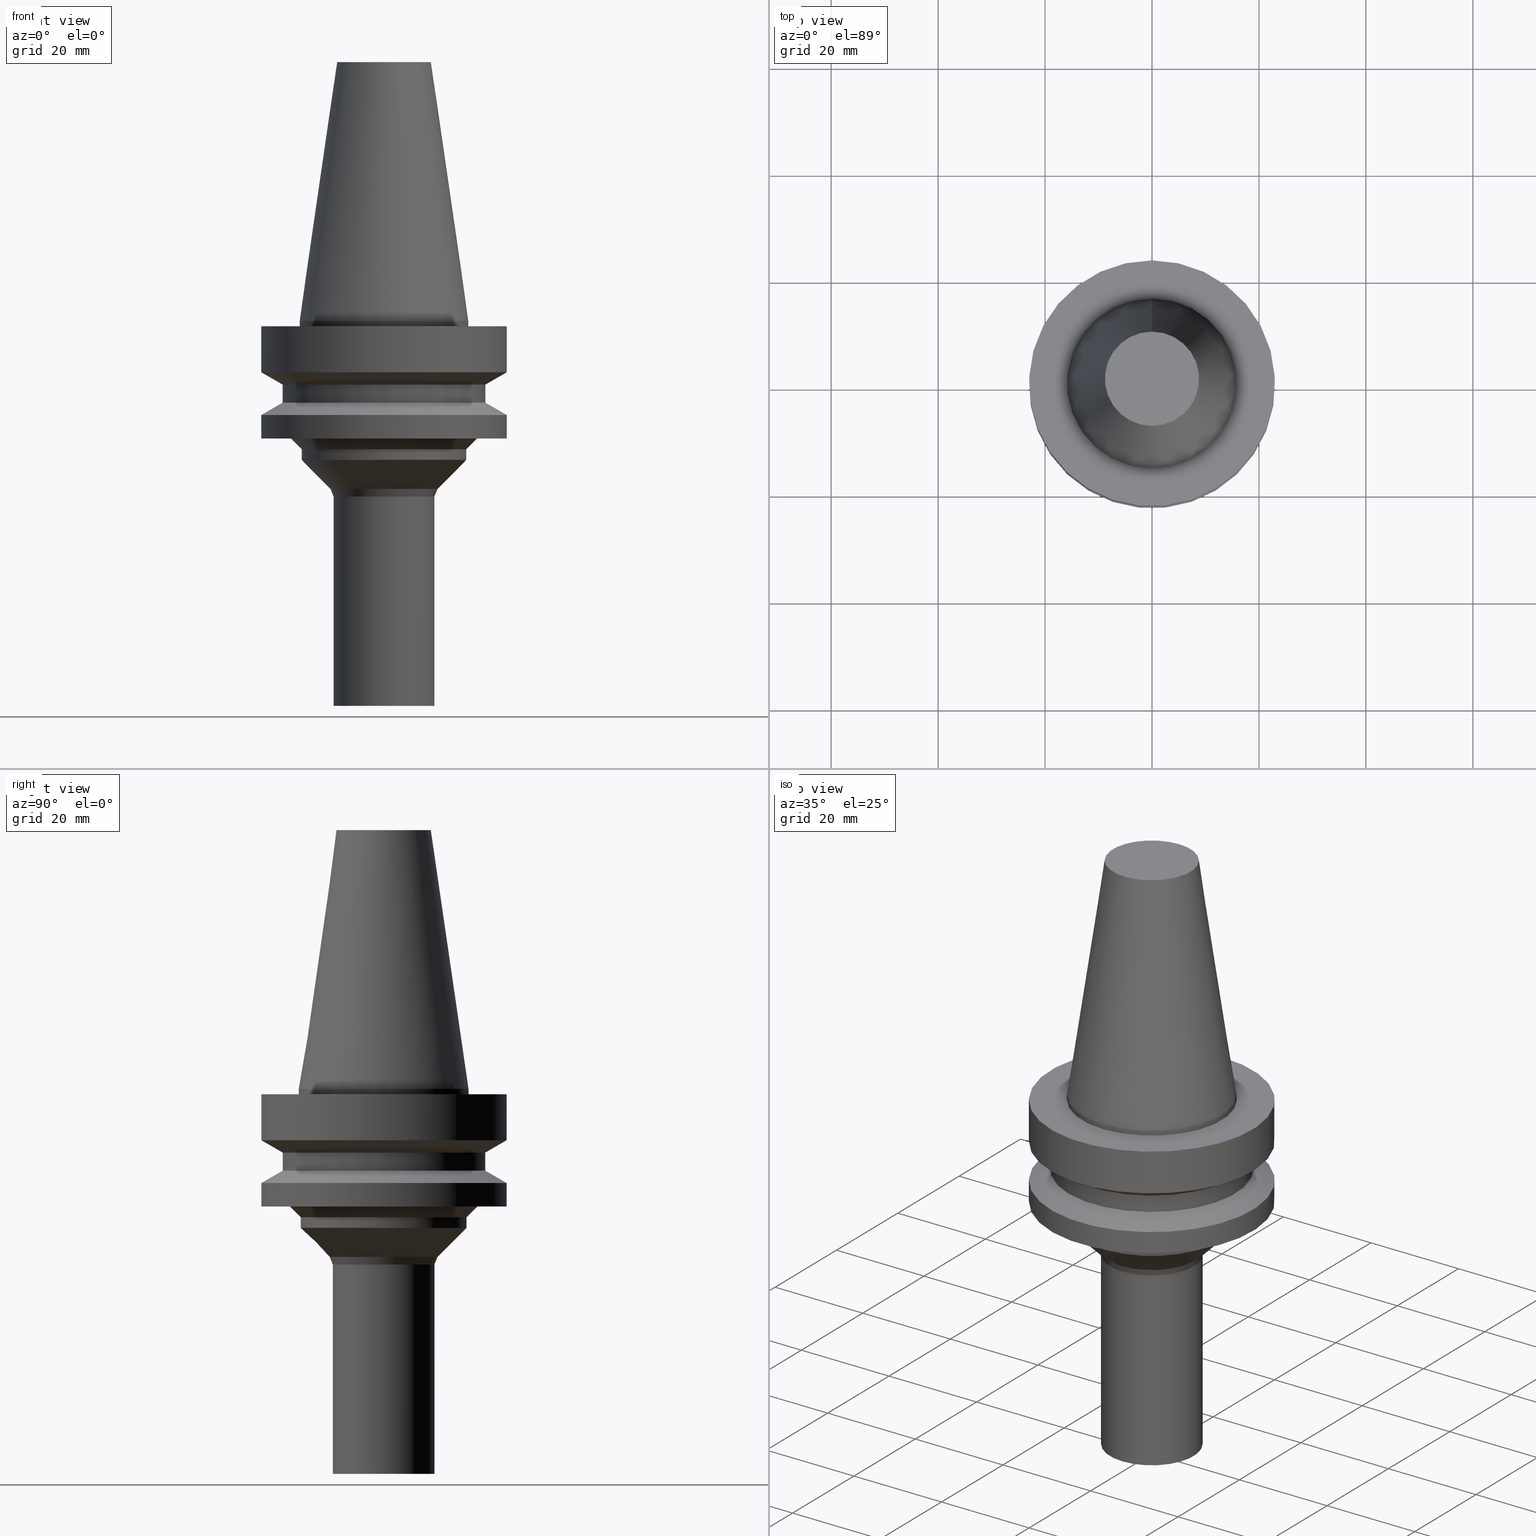
[diagram: canonical four-view strip — front | top / right | iso, engineering-drawing reading convention]
A machine part, canonical four-view strip (front | top / right | iso — engineering-drawing reading convention). The complete STEP part file that produces these views, byte-faithful:
ISO-10303-21;
HEADER;
FILE_DESCRIPTION((''),'1');
FILE_NAME('//Big_tech03/bigt/Translate/21_\X2\8F2A90ED7DDA\X0\-DXF/21_CK\X2\30DC30FC30EA30F330B030B730B930C630E0\X0\/01_CK\X2\30D930FC30B930DB30EB30C0\X0\ CK/BBT/BBT30/BBT30-CK1-105.stp','2012-05-17T01:13:19',(''),(''),'Spatial Interop R18','Kubotek KeyCreator V8.5.1 (14335)',' ');
FILE_SCHEMA(('CONFIG_CONTROL_DESIGN'));
ENDSEC;
DATA;
#1=DESIGN_CONTEXT('',#27,'design');
#2=APPLICATION_PROTOCOL_DEFINITION('INTERNATIONAL STANDARD','config_control_design',1994,#27);
#3=PRODUCT_CATEGORY_RELATIONSHIP('NONE','NONE',#28,#29);
#4=DATE_AND_TIME(#30,#31);
#5=DATE_TIME_ROLE('creation_date');
#6=DATE_TIME_ROLE('classification_date');
#7=PERSON_AND_ORGANIZATION_ROLE('creator');
#8=PERSON_AND_ORGANIZATION_ROLE('design_supplier');
#9=PERSON_AND_ORGANIZATION_ROLE('classification_officer');
#10=PERSON_AND_ORGANIZATION_ROLE('design_owner');
#11=APPROVAL_PERSON_ORGANIZATION(#32,#33,#34);
#12=APPROVAL_DATE_TIME(#4,#33);
#13=CC_DESIGN_APPROVAL(#33,(#35,#36,#37));
#14=CC_DESIGN_DATE_AND_TIME_ASSIGNMENT(#4,#5,(#37));
#15=CC_DESIGN_DATE_AND_TIME_ASSIGNMENT(#4,#6,(#35));
#16=CC_DESIGN_PERSON_AND_ORGANIZATION_ASSIGNMENT(#32,#10,(#38));
#17=CC_DESIGN_PERSON_AND_ORGANIZATION_ASSIGNMENT(#32,#7,(#37));
#18=CC_DESIGN_PERSON_AND_ORGANIZATION_ASSIGNMENT(#32,#7,(#36));
#19=CC_DESIGN_PERSON_AND_ORGANIZATION_ASSIGNMENT(#32,#8,(#36));
#20=CC_DESIGN_SECURITY_CLASSIFICATION(#35,(#36));
#21=CC_DESIGN_PERSON_AND_ORGANIZATION_ASSIGNMENT(#32,#9,(#35));
#22=SHAPE_DEFINITION_REPRESENTATION(#39,#40);
#23= (GEOMETRIC_REPRESENTATION_CONTEXT(3)GLOBAL_UNCERTAINTY_ASSIGNED_CONTEXT((#43))GLOBAL_UNIT_ASSIGNED_CONTEXT((#45,#46,#47))REPRESENTATION_CONTEXT('NONE','WORKSPACE'));
#27=APPLICATION_CONTEXT('CONFIGURATION CONTROLLED 3D DESIGNS OF MECHANICAL PARTS AND ASSEMBLIES');
#28=PRODUCT_CATEGORY('part','NONE');
#29=PRODUCT_RELATED_PRODUCT_CATEGORY('detail',' ',(#38));
#30=CALENDAR_DATE(2012,17,4);
#31=LOCAL_TIME(10,13,19.0,#49);
#32=PERSON_AND_ORGANIZATION(#50,#51);
#33=APPROVAL(#52,'SOLID MODEL');
#34=APPROVAL_ROLE('APPROVED');
#35=SECURITY_CLASSIFICATION('','',#53);
#36=PRODUCT_DEFINITION_FORMATION_WITH_SPECIFIED_SOURCE(' ','NONE',#38,.NOT_KNOWN.);
#37=PRODUCT_DEFINITION('NONE','NONE',#36,#1);
#38=PRODUCT('1','1','PART-1-DESC',(#54));
#39=PRODUCT_DEFINITION_SHAPE('NONE','NONE',#37);
#40=ADVANCED_BREP_SHAPE_REPRESENTATION('1',(#55,#56),#23);
#43=UNCERTAINTY_MEASURE_WITH_UNIT(LENGTH_MEASURE(1.0E-006),#45,'','');
#45= (CONVERSION_BASED_UNIT('MILLIMETRE',#59)LENGTH_UNIT()NAMED_UNIT(#62));
#46= (NAMED_UNIT(#64)PLANE_ANGLE_UNIT()SI_UNIT($,.RADIAN.));
#47= (NAMED_UNIT(#64)SOLID_ANGLE_UNIT()SI_UNIT($,.STERADIAN.));
#49=COORDINATED_UNIVERSAL_TIME_OFFSET(9,0,.AHEAD.);
#50=PERSON('','UNSPECIFIED',$,$,$,$);
#51=ORGANIZATION('UNSPECIFIED','UNSPECIFIED','UNSPECIFIED');
#52=APPROVAL_STATUS('approved');
#53=SECURITY_CLASSIFICATION_LEVEL('unclassified');
#54=MECHANICAL_CONTEXT('',#27,'mechanical');
#55=MANIFOLD_SOLID_BREP('1',#70);
#56=AXIS2_PLACEMENT_3D('',#71,#72,#73);
#59=LENGTH_MEASURE_WITH_UNIT(LENGTH_MEASURE(1.0),#74);
#62=DIMENSIONAL_EXPONENTS(1.0,0.0,0.0,0.0,0.0,0.0,0.0);
#64=DIMENSIONAL_EXPONENTS(0.0,0.0,0.0,0.0,0.0,0.0,0.0);
#70=CLOSED_SHELL('',(#75,#76,#77,#78,#79,#80,#81,#82,#83,#84,#85,#86,#87,#88,#89,#90));
#71=CARTESIAN_POINT('',(0.0,0.0,0.0));
#72=DIRECTION('',(0.0,0.0,1.0));
#73=DIRECTION('',(1.0,0.0,0.0));
#74= (NAMED_UNIT(#62)LENGTH_UNIT()SI_UNIT(.MILLI.,.METRE.));
#75=ADVANCED_FACE('',(#92),#93,.T.);
#76=ADVANCED_FACE('',(#94),#95,.T.);
#77=ADVANCED_FACE('',(#96,#97),#98,.T.);
#78=ADVANCED_FACE('',(#99,#100),#101,.T.);
#79=ADVANCED_FACE('',(#102,#103),#104,.T.);
#80=ADVANCED_FACE('',(#105,#106),#107,.T.);
#81=ADVANCED_FACE('',(#108,#109),#110,.T.);
#82=ADVANCED_FACE('',(#111,#112),#113,.T.);
#83=ADVANCED_FACE('',(#114,#115),#116,.T.);
#84=ADVANCED_FACE('',(#117,#118),#119,.T.);
#85=ADVANCED_FACE('',(#120,#121),#122,.T.);
#86=ADVANCED_FACE('',(#123,#124),#125,.T.);
#87=ADVANCED_FACE('',(#126,#127),#128,.T.);
#88=ADVANCED_FACE('',(#129,#130),#131,.T.);
#89=ADVANCED_FACE('',(#132,#133),#134,.T.);
#90=ADVANCED_FACE('',(#135,#136),#137,.T.);
#92=FACE_OUTER_BOUND('',#138,.T.);
#93=PLANE('',#139);
#94=FACE_OUTER_BOUND('',#140,.T.);
#95=PLANE('',#141);
#96=FACE_BOUND('',#142,.T.);
#97=FACE_BOUND('',#143,.T.);
#98=CYLINDRICAL_SURFACE('',#144,9.50000000000001);
#99=FACE_BOUND('',#145,.T.);
#100=FACE_BOUND('',#146,.T.);
#101=CONICAL_SURFACE('',#147,9.79268323946581,0.392550581823694);
#102=FACE_BOUND('',#148,.T.);
#103=FACE_BOUND('',#149,.T.);
#104=CONICAL_SURFACE('',#150,12.7926832394658,0.785398163397447);
#105=FACE_BOUND('',#151,.T.);
#106=FACE_BOUND('',#152,.T.);
#107=CYLINDRICAL_SURFACE('',#153,15.5);
#108=FACE_BOUND('',#154,.T.);
#109=FACE_BOUND('',#155,.T.);
#110=CONICAL_SURFACE('',#156,16.5,0.785398163397448);
#111=FACE_OUTER_BOUND('',#157,.T.);
#112=FACE_BOUND('',#158,.T.);
#113=PLANE('',#159);
#114=FACE_BOUND('',#160,.T.);
#115=FACE_BOUND('',#161,.T.);
#116=CYLINDRICAL_SURFACE('',#162,23.0);
#117=FACE_BOUND('',#163,.T.);
#118=FACE_BOUND('',#164,.T.);
#119=CONICAL_SURFACE('',#165,21.0,1.0471975511966);
#120=FACE_BOUND('',#166,.T.);
#121=FACE_BOUND('',#167,.T.);
#122=CYLINDRICAL_SURFACE('',#168,19.0);
#123=FACE_BOUND('',#169,.T.);
#124=FACE_BOUND('',#170,.T.);
#125=CONICAL_SURFACE('',#171,21.0,1.0471975511966);
#126=FACE_BOUND('',#172,.T.);
#127=FACE_BOUND('',#173,.T.);
#128=CYLINDRICAL_SURFACE('',#174,23.0);
#129=FACE_BOUND('',#175,.T.);
#130=FACE_OUTER_BOUND('',#176,.T.);
#131=PLANE('',#177);
#132=FACE_BOUND('',#178,.T.);
#133=FACE_BOUND('',#179,.T.);
#134=CYLINDRICAL_SURFACE('',#180,15.8750000000006);
#135=FACE_BOUND('',#181,.T.);
#136=FACE_BOUND('',#182,.T.);
#137=CONICAL_SURFACE('',#183,12.3457500000001,0.144815870053811);
#138=EDGE_LOOP('',(#184));
#139=AXIS2_PLACEMENT_3D('',#185,#186,#187);
#140=EDGE_LOOP('',(#188));
#141=AXIS2_PLACEMENT_3D('',#189,#190,#191);
#142=EDGE_LOOP('',(#192));
#143=EDGE_LOOP('',(#193));
#144=AXIS2_PLACEMENT_3D('',#194,#195,#196);
#145=EDGE_LOOP('',(#197));
#146=EDGE_LOOP('',(#198));
#147=AXIS2_PLACEMENT_3D('',#199,#200,#201);
#148=EDGE_LOOP('',(#202));
#149=EDGE_LOOP('',(#203));
#150=AXIS2_PLACEMENT_3D('',#204,#205,#206);
#151=EDGE_LOOP('',(#207));
#152=EDGE_LOOP('',(#208));
#153=AXIS2_PLACEMENT_3D('',#209,#210,#211);
#154=EDGE_LOOP('',(#212));
#155=EDGE_LOOP('',(#213));
#156=AXIS2_PLACEMENT_3D('',#214,#215,#216);
#157=EDGE_LOOP('',(#217));
#158=EDGE_LOOP('',(#218));
#159=AXIS2_PLACEMENT_3D('',#219,#220,#221);
#160=EDGE_LOOP('',(#222));
#161=EDGE_LOOP('',(#223));
#162=AXIS2_PLACEMENT_3D('',#224,#225,#226);
#163=EDGE_LOOP('',(#227));
#164=EDGE_LOOP('',(#228));
#165=AXIS2_PLACEMENT_3D('',#229,#230,#231);
#166=EDGE_LOOP('',(#232));
#167=EDGE_LOOP('',(#233));
#168=AXIS2_PLACEMENT_3D('',#234,#235,#236);
#169=EDGE_LOOP('',(#237));
#170=EDGE_LOOP('',(#238));
#171=AXIS2_PLACEMENT_3D('',#239,#240,#241);
#172=EDGE_LOOP('',(#242));
#173=EDGE_LOOP('',(#243));
#174=AXIS2_PLACEMENT_3D('',#244,#245,#246);
#175=EDGE_LOOP('',(#247));
#176=EDGE_LOOP('',(#248));
#177=AXIS2_PLACEMENT_3D('',#249,#250,#251);
#178=EDGE_LOOP('',(#252));
#179=EDGE_LOOP('',(#253));
#180=AXIS2_PLACEMENT_3D('',#254,#255,#256);
#181=EDGE_LOOP('',(#257));
#182=EDGE_LOOP('',(#258));
#183=AXIS2_PLACEMENT_3D('',#259,#260,#261);
#184=ORIENTED_EDGE('',*,*,#262,.T.);
#185=CARTESIAN_POINT('',(-2.96364525393659E-015,4.40825,48.4));
#186=DIRECTION('',(-6.12323399573677E-017,-1.22464679914735E-016,1.0));
#187=DIRECTION('',(-1.23259516440783E-032,1.0,1.22464679914735E-016));
#188=ORIENTED_EDGE('',*,*,#263,.F.);
#189=CARTESIAN_POINT('',(4.40872847693047E-015,4.75000000000002,-72.0));
#190=DIRECTION('',(6.12323399573677E-017,1.22464679914735E-016,-1.0));
#191=DIRECTION('',(1.23259516440783E-032,-1.0,-1.22464679914735E-016));
#192=ORIENTED_EDGE('',*,*,#264,.F.);
#193=ORIENTED_EDGE('',*,*,#263,.T.);
#194=CARTESIAN_POINT('',(3.20944493963005E-015,6.4188898792601E-015,-52.4142135));
#195=DIRECTION('',(6.12323399573677E-017,1.22464679914735E-016,-1.0));
#196=DIRECTION('',(-1.23259516440783E-032,1.0,1.22464679914735E-016));
#197=ORIENTED_EDGE('',*,*,#265,.F.);
#198=ORIENTED_EDGE('',*,*,#264,.T.);
#199=CARTESIAN_POINT('',(1.9668764608639E-015,3.9337529217278E-015,-32.1215302605342));
#200=DIRECTION('',(-6.12323399573677E-017,-1.22464679914735E-016,1.0));
#201=DIRECTION('',(-1.23259516440783E-032,1.0,1.22464679914735E-016));
#202=ORIENTED_EDGE('',*,*,#266,.F.);
#203=ORIENTED_EDGE('',*,*,#265,.T.);
#204=CARTESIAN_POINT('',(1.75781617914487E-015,3.51563235828973E-015,-28.7073167605341));
#205=DIRECTION('',(-6.12323399573677E-017,-1.22464679914735E-016,1.0));
#206=DIRECTION('',(-1.23259516440783E-032,1.0,1.22464679914735E-016));
#207=ORIENTED_EDGE('',*,*,#267,.F.);
#208=ORIENTED_EDGE('',*,*,#266,.T.);
#209=CARTESIAN_POINT('',(1.53080849893419E-015,3.06161699786838E-015,-25.0));
#210=DIRECTION('',(6.12323399573677E-017,1.22464679914735E-016,-1.0));
#211=DIRECTION('',(-1.23259516440783E-032,1.0,1.22464679914735E-016));
#212=ORIENTED_EDGE('',*,*,#268,.F.);
#213=ORIENTED_EDGE('',*,*,#267,.T.);
#214=CARTESIAN_POINT('',(1.40834381901946E-015,2.81668763803891E-015,-23.0));
#215=DIRECTION('',(-6.12323399573677E-017,-1.22464679914735E-016,1.0));
#216=DIRECTION('',(-1.23259516440783E-032,1.0,1.22464679914735E-016));
#217=ORIENTED_EDGE('',*,*,#269,.F.);
#218=ORIENTED_EDGE('',*,*,#268,.T.);
#219=CARTESIAN_POINT('',(1.34711147906209E-015,20.25,-22.0));
#220=DIRECTION('',(6.12323399573677E-017,1.22464679914735E-016,-1.0));
#221=DIRECTION('',(1.23259516440783E-032,-1.0,-1.22464679914735E-016));
#222=ORIENTED_EDGE('',*,*,#270,.F.);
#223=ORIENTED_EDGE('',*,*,#269,.T.);
#224=CARTESIAN_POINT('',(1.21240033115588E-015,2.42480066231176E-015,-19.8));
#225=DIRECTION('',(6.12323399573677E-017,1.22464679914735E-016,-1.0));
#226=DIRECTION('',(-1.23259516440783E-032,1.0,1.22464679914735E-016));
#227=ORIENTED_EDGE('',*,*,#271,.F.);
#228=ORIENTED_EDGE('',*,*,#270,.T.);
#229=CARTESIAN_POINT('',(1.00698416733468E-015,2.01396833466935E-015,-16.4452994616207));
#230=DIRECTION('',(6.12323399573676E-017,1.22464679914735E-016,-1.0));
#231=DIRECTION('',(-1.23259516440783E-032,1.0,1.22464679914735E-016));
#232=ORIENTED_EDGE('',*,*,#272,.F.);
#233=ORIENTED_EDGE('',*,*,#271,.T.);
#234=CARTESIAN_POINT('',(8.327598234202E-016,1.6655196468404E-015,-13.6));
#235=DIRECTION('',(6.12323399573677E-017,1.22464679914735E-016,-1.0));
#236=DIRECTION('',(-1.23259516440783E-032,1.0,1.22464679914735E-016));
#237=ORIENTED_EDGE('',*,*,#273,.F.);
#238=ORIENTED_EDGE('',*,*,#272,.T.);
#239=CARTESIAN_POINT('',(6.58535479505723E-016,1.31707095901145E-015,-10.7547005383792));
#240=DIRECTION('',(-6.12323399573676E-017,-1.22464679914735E-016,1.0));
#241=DIRECTION('',(-1.23259516440783E-032,1.0,1.22464679914735E-016));
#242=ORIENTED_EDGE('',*,*,#274,.F.);
#243=ORIENTED_EDGE('',*,*,#273,.T.);
#244=CARTESIAN_POINT('',(3.24531401774048E-016,6.49062803548097E-016,-5.3));
#245=DIRECTION('',(6.12323399573677E-017,1.22464679914735E-016,-1.0));
#246=DIRECTION('',(-1.23259516440783E-032,1.0,1.22464679914735E-016));
#247=ORIENTED_EDGE('',*,*,#275,.F.);
#248=ORIENTED_EDGE('',*,*,#274,.T.);
#249=CARTESIAN_POINT('',(6.12323399573674E-017,19.4375000000006,-0.999999999999998));
#250=DIRECTION('',(-6.12323399573677E-017,-1.22464679914735E-016,1.0));
#251=DIRECTION('',(-1.23259516440783E-032,1.0,1.22464679914735E-016));
#252=ORIENTED_EDGE('',*,*,#276,.F.);
#253=ORIENTED_EDGE('',*,*,#275,.T.);
#254=CARTESIAN_POINT('',(3.06161699787104E-017,6.12323399574207E-017,-0.500000000000433));
#255=DIRECTION('',(6.12323399573677E-017,1.22464679914735E-016,-1.0));
#256=DIRECTION('',(-1.23259516440783E-032,1.0,1.22464679914735E-016));
#257=ORIENTED_EDGE('',*,*,#262,.F.);
#258=ORIENTED_EDGE('',*,*,#276,.T.);
#259=CARTESIAN_POINT('',(-1.48182262696827E-015,-2.96364525393654E-015,24.1999999999996));
#260=DIRECTION('',(6.12323399573677E-017,1.22464679914735E-016,-1.0));
#261=DIRECTION('',(-1.23259516440783E-032,1.0,1.22464679914735E-016));
#262=EDGE_CURVE('',#277,#277,#278,.T.);
#263=EDGE_CURVE('',#279,#279,#280,.T.);
#264=EDGE_CURVE('',#281,#281,#282,.T.);
#265=EDGE_CURVE('',#283,#283,#284,.T.);
#266=EDGE_CURVE('',#285,#285,#286,.T.);
#267=EDGE_CURVE('',#287,#287,#288,.T.);
#268=EDGE_CURVE('',#289,#289,#290,.T.);
#269=EDGE_CURVE('',#291,#291,#292,.T.);
#270=EDGE_CURVE('',#293,#293,#294,.T.);
#271=EDGE_CURVE('',#295,#295,#296,.T.);
#272=EDGE_CURVE('',#297,#297,#298,.T.);
#273=EDGE_CURVE('',#299,#299,#300,.T.);
#274=EDGE_CURVE('',#301,#301,#302,.T.);
#275=EDGE_CURVE('',#303,#303,#304,.T.);
#276=EDGE_CURVE('',#305,#305,#306,.T.);
#277=VERTEX_POINT('',#307);
#278=CIRCLE('',#308,8.81650000000002);
#279=VERTEX_POINT('',#309);
#280=CIRCLE('',#310,9.50000000000001);
#281=VERTEX_POINT('',#311);
#282=CIRCLE('',#312,9.50000000000001);
#283=VERTEX_POINT('',#313);
#284=CIRCLE('',#314,10.0853664789316);
#285=VERTEX_POINT('',#315);
#286=CIRCLE('',#316,15.5);
#287=VERTEX_POINT('',#317);
#288=CIRCLE('',#318,15.5);
#289=VERTEX_POINT('',#319);
#290=CIRCLE('',#320,17.5);
#291=VERTEX_POINT('',#321);
#292=CIRCLE('',#322,23.0);
#293=VERTEX_POINT('',#323);
#294=CIRCLE('',#324,23.0);
#295=VERTEX_POINT('',#325);
#296=CIRCLE('',#326,19.0);
#297=VERTEX_POINT('',#327);
#298=CIRCLE('',#328,19.0);
#299=VERTEX_POINT('',#329);
#300=CIRCLE('',#330,23.0);
#301=VERTEX_POINT('',#331);
#302=CIRCLE('',#332,23.0);
#303=VERTEX_POINT('',#333);
#304=CIRCLE('',#334,15.8750000000011);
#305=VERTEX_POINT('',#335);
#306=CIRCLE('',#336,15.8750000000001);
#307=CARTESIAN_POINT('',(-2.96364525393659E-015,8.81650000000001,48.4));
#308=AXIS2_PLACEMENT_3D('',#337,#338,#339);
#309=CARTESIAN_POINT('',(4.40872847693047E-015,9.50000000000002,-72.0));
#310=AXIS2_PLACEMENT_3D('',#340,#341,#342);
#311=CARTESIAN_POINT('',(2.01016140232963E-015,9.50000000000002,-32.828427));
#312=AXIS2_PLACEMENT_3D('',#343,#344,#345);
#313=CARTESIAN_POINT('',(1.92359151939818E-015,10.0853664789316,-31.4146335210684));
#314=AXIS2_PLACEMENT_3D('',#346,#347,#348);
#315=CARTESIAN_POINT('',(1.59204083889156E-015,15.5,-25.9999999999999));
#316=AXIS2_PLACEMENT_3D('',#349,#350,#351);
#317=CARTESIAN_POINT('',(1.46957615897682E-015,15.5,-24.0));
#318=AXIS2_PLACEMENT_3D('',#352,#353,#354);
#319=CARTESIAN_POINT('',(1.34711147906209E-015,17.5,-22.0));
#320=AXIS2_PLACEMENT_3D('',#355,#356,#357);
#321=CARTESIAN_POINT('',(1.34711147906209E-015,23.0,-22.0));
#322=AXIS2_PLACEMENT_3D('',#358,#359,#360);
#323=CARTESIAN_POINT('',(1.07768918324967E-015,23.0,-17.6));
#324=AXIS2_PLACEMENT_3D('',#361,#362,#363);
#325=CARTESIAN_POINT('',(9.36279151419683E-016,19.0,-15.2905989232415));
#326=AXIS2_PLACEMENT_3D('',#364,#365,#366);
#327=CARTESIAN_POINT('',(7.29240495420716E-016,19.0,-11.9094010767585));
#328=AXIS2_PLACEMENT_3D('',#367,#368,#369);
#329=CARTESIAN_POINT('',(5.87830463590729E-016,23.0,-9.6));
#330=AXIS2_PLACEMENT_3D('',#370,#371,#372);
#331=CARTESIAN_POINT('',(6.12323399573674E-017,23.0,-0.999999999999997));
#332=AXIS2_PLACEMENT_3D('',#373,#374,#375);
#333=CARTESIAN_POINT('',(6.12323399573675E-017,15.8750000000011,-0.999999999999998));
#334=AXIS2_PLACEMENT_3D('',#376,#377,#378);
#335=CARTESIAN_POINT('',(5.29417501326539E-029,15.8750000000001,-8.65855873206354E-013));
#336=AXIS2_PLACEMENT_3D('',#379,#380,#381);
#337=CARTESIAN_POINT('',(-2.96364525393659E-015,-5.92729050787319E-015,48.4));
#338=DIRECTION('',(-6.12323399573677E-017,-1.22464679914735E-016,1.0));
#339=DIRECTION('',(-1.23259516440783E-032,1.0,1.22464679914735E-016));
#340=CARTESIAN_POINT('',(4.40872847693047E-015,8.81745695386094E-015,-72.0));
#341=DIRECTION('',(-6.12323399573677E-017,-1.22464679914735E-016,1.0));
#342=DIRECTION('',(-1.23259516440783E-032,1.0,1.22464679914735E-016));
#343=CARTESIAN_POINT('',(2.01016140232963E-015,4.02032280465925E-015,-32.828427));
#344=DIRECTION('',(-6.12323399573677E-017,-1.22464679914735E-016,1.0));
#345=DIRECTION('',(-1.23259516440783E-032,1.0,1.22464679914735E-016));
#346=CARTESIAN_POINT('',(1.92359151939818E-015,3.84718303879635E-015,-31.4146335210684));
#347=DIRECTION('',(-6.12323399573677E-017,-1.22464679914735E-016,1.0));
#348=DIRECTION('',(-1.23259516440783E-032,1.0,1.22464679914735E-016));
#349=CARTESIAN_POINT('',(1.59204083889156E-015,3.18408167778311E-015,-25.9999999999999));
#350=DIRECTION('',(-6.12323399573677E-017,-1.22464679914735E-016,1.0));
#351=DIRECTION('',(-1.23259516440783E-032,1.0,1.22464679914735E-016));
#352=CARTESIAN_POINT('',(1.46957615897682E-015,2.93915231795365E-015,-24.0));
#353=DIRECTION('',(-6.12323399573677E-017,-1.22464679914735E-016,1.0));
#354=DIRECTION('',(-1.23259516440783E-032,1.0,1.22464679914735E-016));
#355=CARTESIAN_POINT('',(1.34711147906209E-015,2.69422295812418E-015,-22.0));
#356=DIRECTION('',(-6.12323399573677E-017,-1.22464679914735E-016,1.0));
#357=DIRECTION('',(-1.23259516440783E-032,1.0,1.22464679914735E-016));
#358=CARTESIAN_POINT('',(1.34711147906209E-015,2.69422295812418E-015,-22.0));
#359=DIRECTION('',(-6.12323399573677E-017,-1.22464679914735E-016,1.0));
#360=DIRECTION('',(-1.23259516440783E-032,1.0,1.22464679914735E-016));
#361=CARTESIAN_POINT('',(1.07768918324967E-015,2.15537836649934E-015,-17.6));
#362=DIRECTION('',(-6.12323399573677E-017,-1.22464679914735E-016,1.0));
#363=DIRECTION('',(-1.23259516440783E-032,1.0,1.22464679914735E-016));
#364=CARTESIAN_POINT('',(9.36279151419684E-016,1.87255830283937E-015,-15.2905989232415));
#365=DIRECTION('',(-6.12323399573677E-017,-1.22464679914735E-016,1.0));
#366=DIRECTION('',(-1.23259516440783E-032,1.0,1.22464679914735E-016));
#367=CARTESIAN_POINT('',(7.29240495420716E-016,1.45848099084143E-015,-11.9094010767585));
#368=DIRECTION('',(-6.12323399573677E-017,-1.22464679914735E-016,1.0));
#369=DIRECTION('',(-1.23259516440783E-032,1.0,1.22464679914735E-016));
#370=CARTESIAN_POINT('',(5.8783046359073E-016,1.17566092718146E-015,-9.6));
#371=DIRECTION('',(-6.12323399573677E-017,-1.22464679914735E-016,1.0));
#372=DIRECTION('',(-1.23259516440783E-032,1.0,1.22464679914735E-016));
#373=CARTESIAN_POINT('',(6.12323399573677E-017,1.22464679914735E-016,-1.0));
#374=DIRECTION('',(-6.12323399573677E-017,-1.22464679914735E-016,1.0));
#375=DIRECTION('',(-1.23259516440783E-032,1.0,1.22464679914735E-016));
#376=CARTESIAN_POINT('',(6.12323399573677E-017,1.22464679914735E-016,-1.0));
#377=DIRECTION('',(-6.12323399573677E-017,-1.22464679914735E-016,1.0));
#378=DIRECTION('',(-1.23259516440783E-032,1.0,1.22464679914735E-016));
#379=CARTESIAN_POINT('',(5.30799971073666E-029,1.06159994214733E-028,-8.66862137627322E-013));
#380=DIRECTION('',(-6.12323399573676E-017,-1.22464679914735E-016,1.0));
#381=DIRECTION('',(-1.23259516440783E-032,1.0,1.22464679914735E-016));
ENDSEC;
END-ISO-10303-21;
